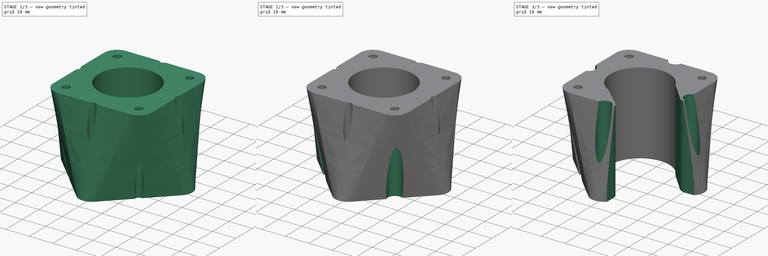
[diagram: build sequence overview — one tinted view per stage of 3, left to right]
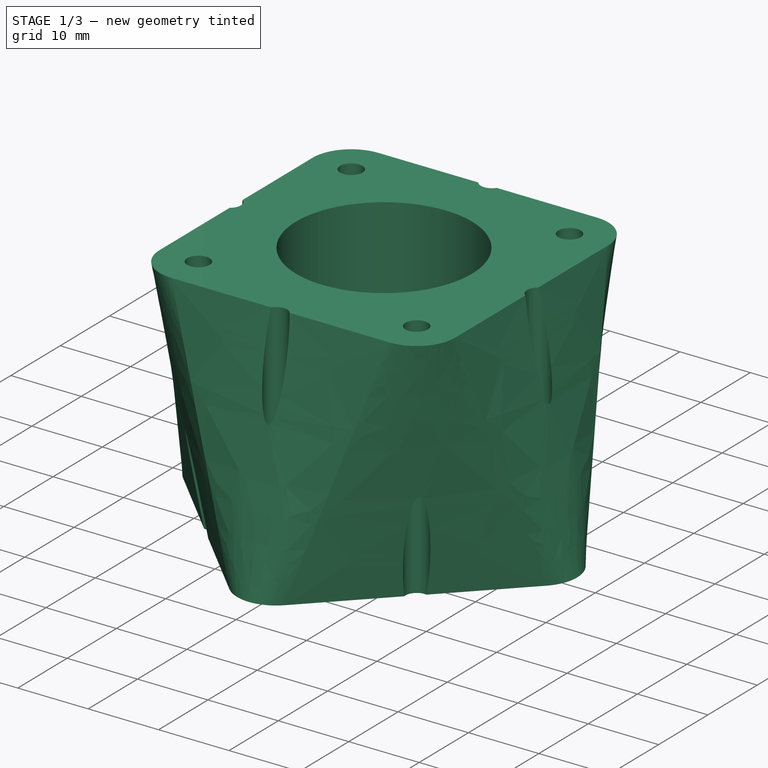
[diagram: stage 1 of 3 — iso view after this stage's code; geometry added in this stage tinted green]
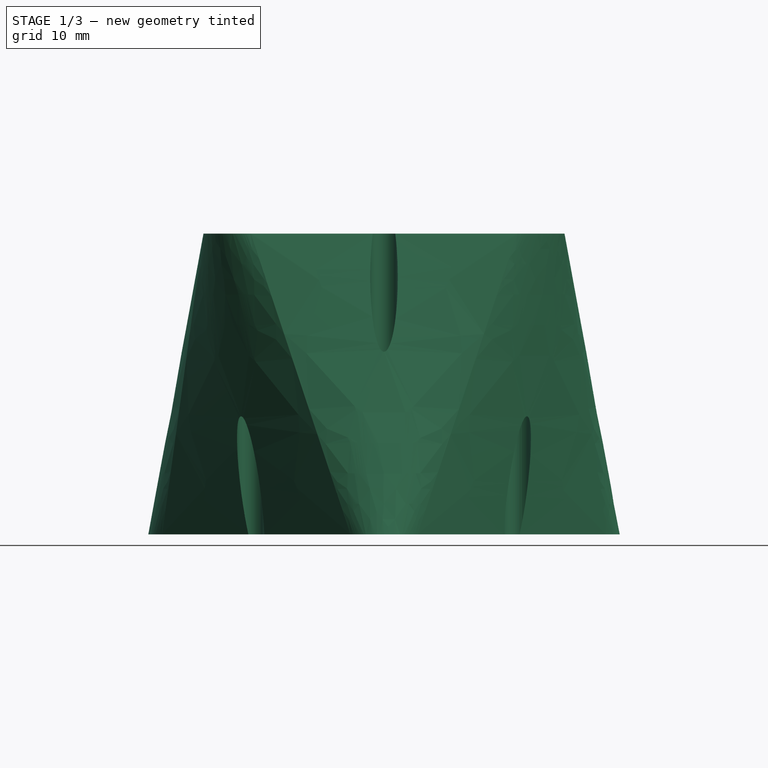
[diagram: stage 1 of 3 — front view after this stage's code; geometry added in this stage tinted green]
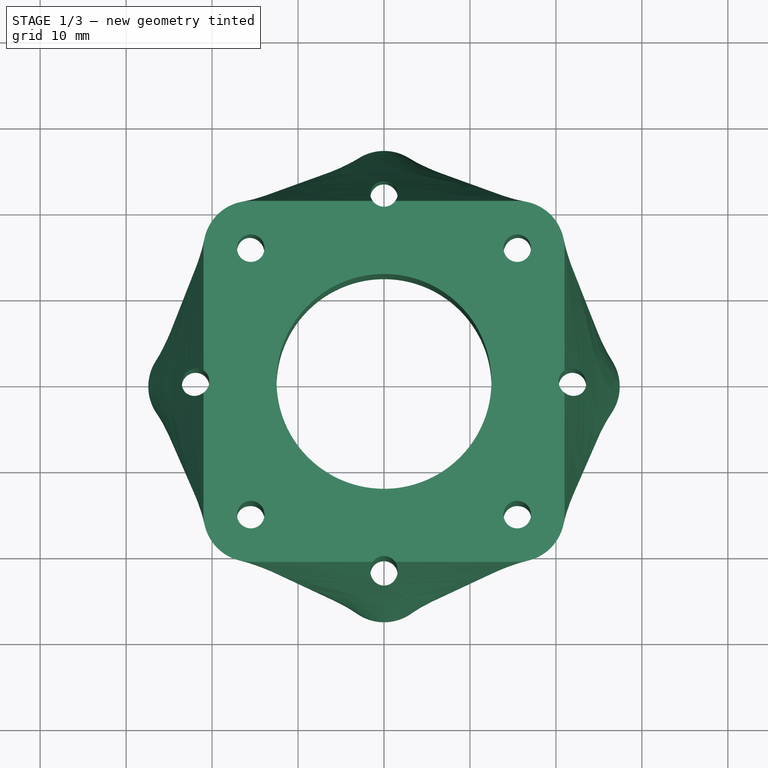
[diagram: stage 1 of 3 — top view after this stage's code; geometry added in this stage tinted green]
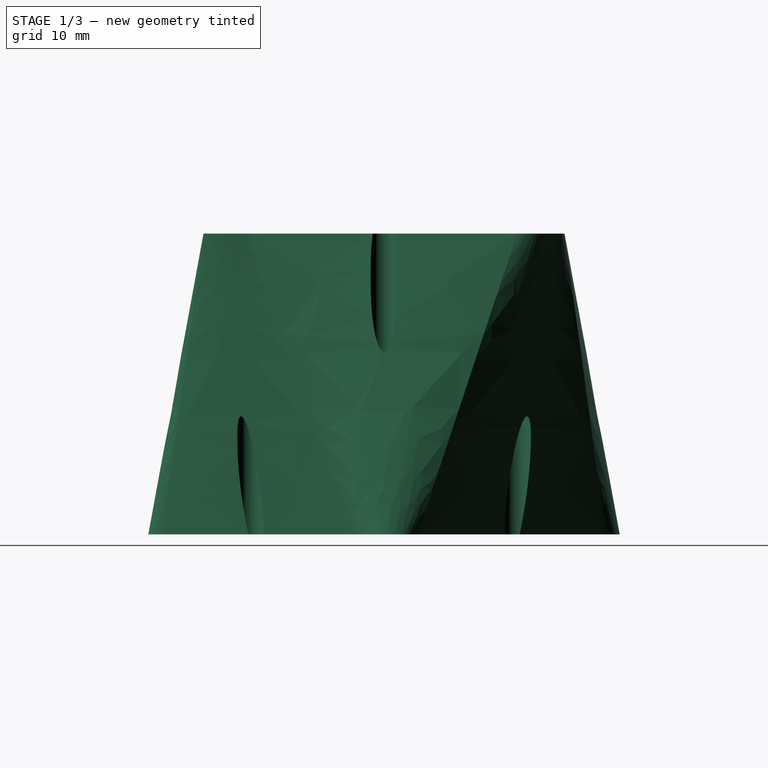
[diagram: stage 1 of 3 — right view after this stage's code; geometry added in this stage tinted green]
FCSTD DOCUMENT  (FreeCAD 0.19R24267 +99 (Git))
Label: motor_offset_coupling
License: All rights reserved
LicenseURL: http://en.wikipedia.org/wiki/All_rights_reserved
objects: Sketcher::SketchObject×6, PartDesign::Pocket×4, PartDesign::AdditiveLoft×1, PartDesign::Body×1
note: 17 computed .brp shape members not serialized (recipe doc carries the construction recipe); baked Part::Feature solids carry a one-line shape summary decoded from their .brp

FEATURE [Sketcher::SketchObject] Sketch
  FullyConstrained = true
  MapMode = 5
  Placement = pos=(0,0,35) rot=(0,0,1;0rad)
  sketch-geometry (16):
    g0: LineSegment StartX=-15.5 StartY=-15.5 StartZ=0 EndX=15.5 EndY=-15.5 EndZ=0
    g1: LineSegment StartX=15.5 StartY=-15.5 StartZ=0 EndX=15.5 EndY=15.5 EndZ=0
    g2: LineSegment StartX=15.5 StartY=15.5 StartZ=0 EndX=-15.5 EndY=15.5 EndZ=0
    g3: LineSegment StartX=-15.5 StartY=15.5 StartZ=0 EndX=-15.5 EndY=-15.5 EndZ=0
    g4: LineSegment StartX=-15.5 StartY=-21 StartZ=0 EndX=15.5 EndY=-21 EndZ=0
    g5: LineSegment StartX=21 StartY=-15.5 StartZ=0 EndX=21 EndY=15.5 EndZ=0
    g6: LineSegment StartX=15.5 StartY=21 StartZ=0 EndX=-15.5 EndY=21 EndZ=0
    g7: LineSegment StartX=-21 StartY=15.5 StartZ=0 EndX=-21 EndY=-15.5 EndZ=0
    g8: ArcOfCircle CenterX=-15.5 CenterY=15.5 CenterZ=0 NormalX=0 NormalY=0 NormalZ=1 AngleXU=0 Radius=5.5 StartAngle=1.5708 EndAngle=3.14159
    g9: GeomPoint X=-21 Y=21 Z=0
    g10: ArcOfCircle CenterX=15.5 CenterY=15.5 CenterZ=0 NormalX=0 NormalY=0 NormalZ=1 AngleXU=0 Radius=5.5 StartAngle=3.5e-15 EndAngle=1.5708
    g11: GeomPoint X=21 Y=21 Z=0
    g12: ArcOfCircle CenterX=15.5 CenterY=-15.5 CenterZ=0 NormalX=0 NormalY=0 NormalZ=1 AngleXU=0 Radius=5.5 StartAngle=4.71239 EndAngle=6.28319
    g13: GeomPoint X=21 Y=-21 Z=0
    g14: ArcOfCircle CenterX=-15.5 CenterY=-15.5 CenterZ=0 NormalX=0 NormalY=0 NormalZ=1 AngleXU=0 Radius=5.5 StartAngle=3.14159 EndAngle=4.71239
    g15: GeomPoint X=-21 Y=-21 Z=0
  constraints (36):
    c: Coincident(g0,g1)
    c: Coincident(g1,g2)
    c: Coincident(g2,g3)
    c: Coincident(g3,g0)
    c: Horizontal(g0)
    c: Horizontal(g2)
    c: Vertical(g1)
    c: Vertical(g3)
    c: DistanceX(g2,g2) = 31
    c: Equal(g3,g0)
    c: Symmetric(g0,g1,g-1)
    c: Horizontal(g4)
    c: Horizontal(g6)
    c: Vertical(g5)
    c: Vertical(g7)
    c: PointOnObject(g9,g6)
    c: PointOnObject(g9,g7)
    c: Tangent(g6,g8) = -1.5708
    c: Tangent(g7,g8) = -1.5708
    c: PointOnObject(g11,g6)
    c: PointOnObject(g11,g5)
    c: Tangent(g6,g10) = -1.5708
    c: Tangent(g5,g10) = -1.5708
    c: PointOnObject(g13,g5)
    c: PointOnObject(g13,g4)
    c: Tangent(g5,g12) = -1.5708
    c: Tangent(g4,g12) = -1.5708
    c: PointOnObject(g15,g4)
    c: PointOnObject(g15,g7)
    c: Tangent(g4,g14) = -1.5708
    c: Tangent(g7,g14) = -1.5708
    c: Horizontal(g7,g0)
    c: DistanceX(g9,g11) = 42
    c: Coincident(g8,g2)
    c: Coincident(g12,g0)
    c: Coincident(g10,g1)
FEATURE [Sketcher::SketchObject] Sketch001
  FullyConstrained = true
  MapMode = 5
  sketch-geometry (16):
    g0: LineSegment StartX=-21.9203 StartY=0 StartZ=0 EndX=0 EndY=-21.9203 EndZ=0
    g1: LineSegment StartX=-9e-16 StartY=-21.9203 StartZ=0 EndX=21.9203 EndY=0 EndZ=0
    g2: LineSegment StartX=21.9203 StartY=0 StartZ=0 EndX=0 EndY=21.9203 EndZ=0
    g3: LineSegment StartX=1.6e-15 StartY=21.9203 StartZ=0 EndX=-21.9203 EndY=0 EndZ=0
    g4: LineSegment StartX=3.88909 StartY=25.8094 StartZ=0 EndX=25.8094 EndY=3.88909 EndZ=0
    g5: LineSegment StartX=25.8094 StartY=-3.88909 StartZ=0 EndX=3.88909 EndY=-25.8094 EndZ=0
    g6: LineSegment StartX=-3.88909 StartY=-25.8094 StartZ=0 EndX=-25.8094 EndY=-3.88909 EndZ=0
    g7: LineSegment StartX=-25.8094 StartY=3.88909 StartZ=0 EndX=-3.88909 EndY=25.8094 EndZ=0
    g8: ArcOfCircle CenterX=1.6e-15 CenterY=21.9203 CenterZ=0 NormalX=0 NormalY=0 NormalZ=1 AngleXU=0 Radius=5.5 StartAngle=0.785398 EndAngle=2.35619
    g9: GeomPoint X=-3.5e-15 Y=29.6985 Z=0
    g10: ArcOfCircle CenterX=21.9203 CenterY=0 CenterZ=0 NormalX=0 NormalY=0 NormalZ=1 AngleXU=0 Radius=5.5 StartAngle=5.49779 EndAngle=7.06858
    g11: GeomPoint X=29.6985 Y=0 Z=0
    g12: ArcOfCircle CenterX=-9e-16 CenterY=-21.9203 CenterZ=0 NormalX=0 NormalY=0 NormalZ=1 AngleXU=0 Radius=5.5 StartAngle=3.92699 EndAngle=5.49779
    g13: GeomPoint X=2e-16 Y=-29.6985 Z=0
    g14: ArcOfCircle CenterX=-21.9203 CenterY=0 CenterZ=0 NormalX=0 NormalY=0 NormalZ=1 AngleXU=0 Radius=5.5 StartAngle=2.35619 EndAngle=3.92699
    g15: GeomPoint X=-29.6985 Y=0 Z=0
  constraints (34):
    c: Coincident(g0,g1)
    c: Coincident(g1,g2)
    c: Coincident(g2,g3)
    c: Coincident(g3,g0)
    c: Perpendicular(g3,g2)
    c: Perpendicular(g1,g2)
    c: Perpendicular(g0,g1)
    c: Distance(g2) = 31
    c: Equal(g2,g1)
    c: Symmetric(g0,g1,g-1)
    c: PointOnObject(g1,g-1)
    c: Perpendicular(g7,g4)
    c: Perpendicular(g5,g4)
    c: Perpendicular(g6,g5)
    c: Symmetric(g11,g15,g-1)
    c: PointOnObject(g15,g-1)
    c: PointOnObject(g9,g7)
    c: PointOnObject(g9,g4)
    c: Tangent(g7,g8) = 1.5708
    c: Tangent(g4,g8) = 1.5708
    c: PointOnObject(g11,g4)
    c: Tangent(g4,g10) = 1.5708
    c: Tangent(g5,g10) = 1.5708
    c: PointOnObject(g13,g5)
    c: PointOnObject(g13,g6)
    c: Tangent(g5,g12) = 1.5708
    c: Tangent(g6,g12) = 1.5708
    c: Tangent(g6,g14) = 1.5708
    c: Tangent(g7,g14) = 1.5708
    c: Coincident(g8,g2)
    c: Coincident(g12,g0)
    c: Coincident(g10,g1)
    c: Distance(g15,g13) = 42
    c: Coincident(g14,g0)
FEATURE [PartDesign::AdditiveLoft] AdditiveLoft
  Closed = false
  Placement = pos=(0,0,35) rot=(0,0,1;0rad)
  Profile = -> Sketch
  Refine = true
  Ruled = false
  Sections = -> [Sketch001]
FEATURE [Sketcher::SketchObject] Sketch002
  FullyConstrained = true
  MapMode = 5
  sketch-geometry (17):
    g0: LineSegment StartX=-15.5 StartY=-15.5 StartZ=0 EndX=15.5 EndY=-15.5 EndZ=0
    g1: LineSegment StartX=15.5 StartY=-15.5 StartZ=0 EndX=15.5 EndY=15.5 EndZ=0
    g2: LineSegment StartX=15.5 StartY=15.5 StartZ=0 EndX=-15.5 EndY=15.5 EndZ=0
    g3: LineSegment StartX=-15.5 StartY=15.5 StartZ=0 EndX=-15.5 EndY=-15.5 EndZ=0
    g4: Circle CenterX=-15.5 CenterY=-15.5 CenterZ=0 NormalX=0 NormalY=0 NormalZ=1 AngleXU=0 Radius=1.6
    g5: Circle CenterX=-15.5 CenterY=15.5 CenterZ=0 NormalX=0 NormalY=0 NormalZ=1 AngleXU=0 Radius=1.6
    g6: Circle CenterX=15.5 CenterY=15.5 CenterZ=0 NormalX=0 NormalY=0 NormalZ=1 AngleXU=0 Radius=1.6
    g7: Circle CenterX=15.5 CenterY=-15.5 CenterZ=0 NormalX=0 NormalY=0 NormalZ=1 AngleXU=0 Radius=1.6
    g8: Circle CenterX=0 CenterY=0 CenterZ=0 NormalX=0 NormalY=0 NormalZ=1 AngleXU=0 Radius=12.5
    g9: LineSegment StartX=-21.9203 StartY=0 StartZ=0 EndX=0 EndY=21.9203 EndZ=0
    g10: LineSegment StartX=0 StartY=21.9203 StartZ=0 EndX=21.9203 EndY=0 EndZ=0
    g11: LineSegment StartX=21.9203 StartY=3.5e-15 StartZ=0 EndX=0 EndY=-21.9203 EndZ=0
    g12: LineSegment StartX=0 StartY=-21.9203 StartZ=0 EndX=-21.9203 EndY=0 EndZ=0
    g13: Circle CenterX=0 CenterY=21.9203 CenterZ=0 NormalX=0 NormalY=0 NormalZ=1 AngleXU=0 Radius=1.6
    g14: Circle CenterX=21.9203 CenterY=0 CenterZ=0 NormalX=0 NormalY=0 NormalZ=1 AngleXU=0 Radius=1.6
    g15: Circle CenterX=0 CenterY=-21.9203 CenterZ=0 NormalX=0 NormalY=0 NormalZ=1 AngleXU=0 Radius=1.6
    g16: Circle CenterX=-21.9203 CenterY=0 CenterZ=0 NormalX=0 NormalY=0 NormalZ=1 AngleXU=0 Radius=1.6
  constraints (42):
    c: Coincident(g0,g1)
    c: Coincident(g1,g2)
    c: Coincident(g2,g3)
    c: Coincident(g3,g0)
    c: Horizontal(g0)
    c: Horizontal(g2)
    c: Vertical(g1)
    c: Vertical(g3)
    c: DistanceX(g2,g2) = 31
    c: Equal(g3,g0)
    c: Symmetric(g0,g1,g-1)
    c: Coincident(g4,g0)
    c: Coincident(g5,g2)
    c: Coincident(g6,g1)
    c: Coincident(g7,g0)
    c: Diameter(g4) = 3.2
    c: Equal(g4,g5)
    c: Equal(g5,g6)
    c: Equal(g6,g7)
    c: Coincident(g8,g-1)
    c: Diameter(g8) = 25
    c: PointOnObject(g9,g-1)
    c: PointOnObject(g9,g-2)
    c: Coincident(g10,g9)
    c: PointOnObject(g10,g-1)
    c: PointOnObject(g11,g-2)
    c: Coincident(g12,g11)
    c: Coincident(g12,g9)
    c: Perpendicular(g12,g9)
    c: Perpendicular(g10,g9)
    c: Perpendicular(g11,g10)
    c: Equal(g9,g10)
    c: Equal(g10,g11)
    c: Equal(g12,g2)
    c: Coincident(g13,g9)
    c: Coincident(g14,g10)
    c: Coincident(g15,g11)
    c: Coincident(g16,g9)
    c: Equal(g4,g13)
    c: Equal(g13,g14)
    c: Equal(g14,g15)
    c: Equal(g15,g16)
FEATURE [PartDesign::Pocket] Pocket
  BaseFeature = -> AdditiveLoft
  Length = 5
  Length2 = 100
  Placement = pos=(0,0,35) rot=(0,0,1;0rad)
  Profile = -> Sketch002
  Refine = true
  Reversed = true
  Type = 1
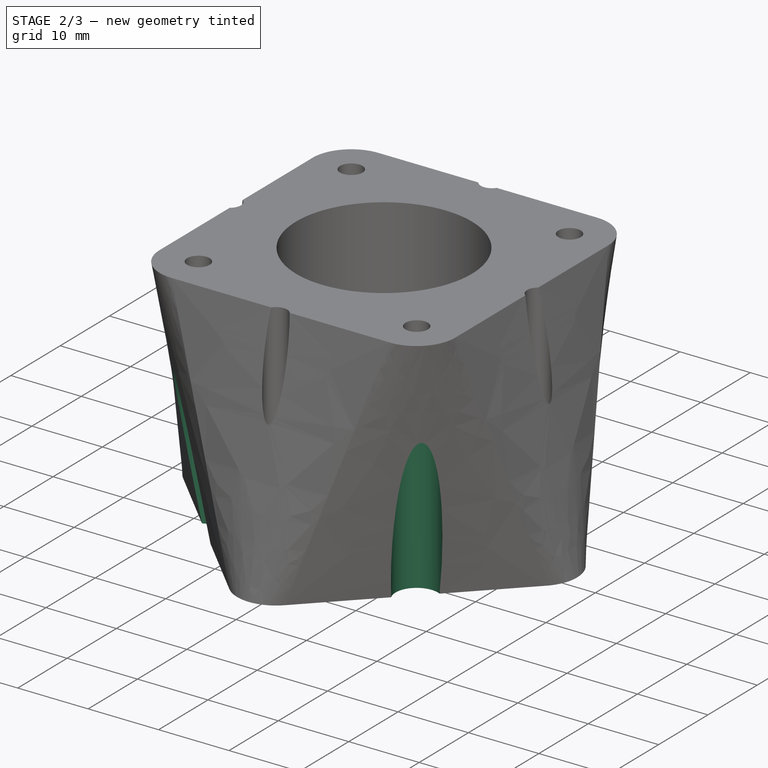
[diagram: stage 2 of 3 — iso view after this stage's code; geometry added in this stage tinted green]
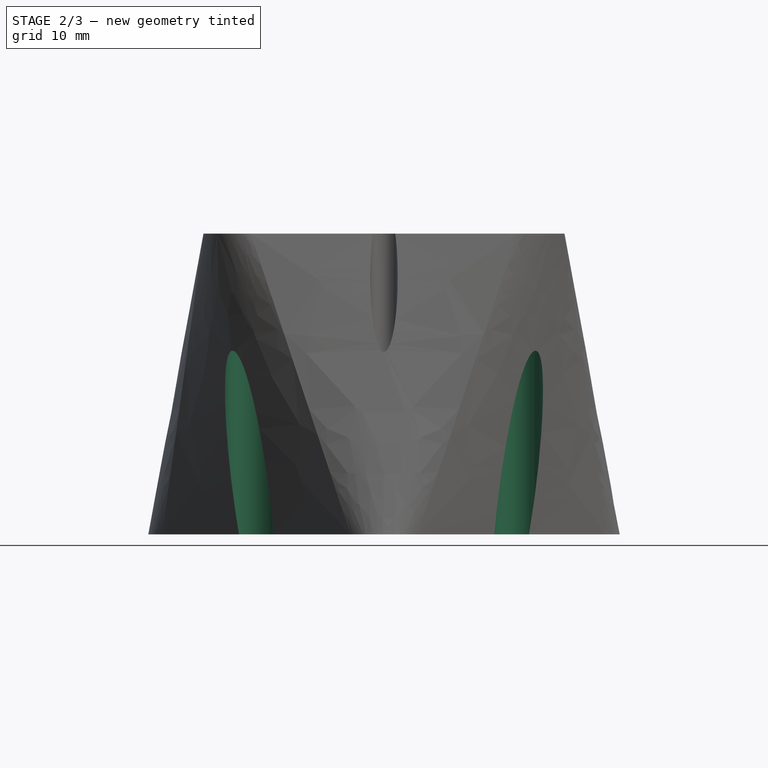
[diagram: stage 2 of 3 — front view after this stage's code; geometry added in this stage tinted green]
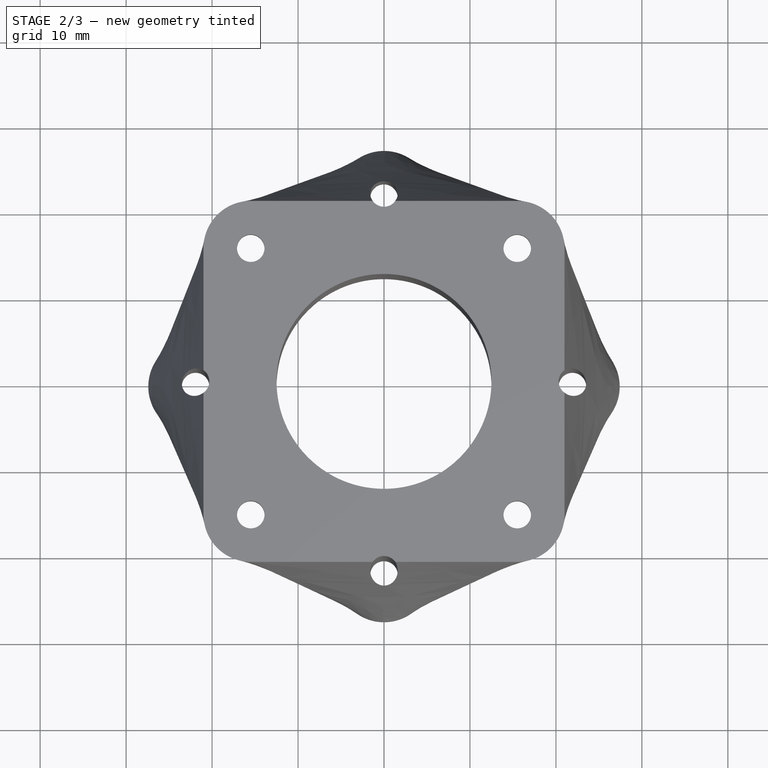
[diagram: stage 2 of 3 — top view after this stage's code; geometry added in this stage tinted green]
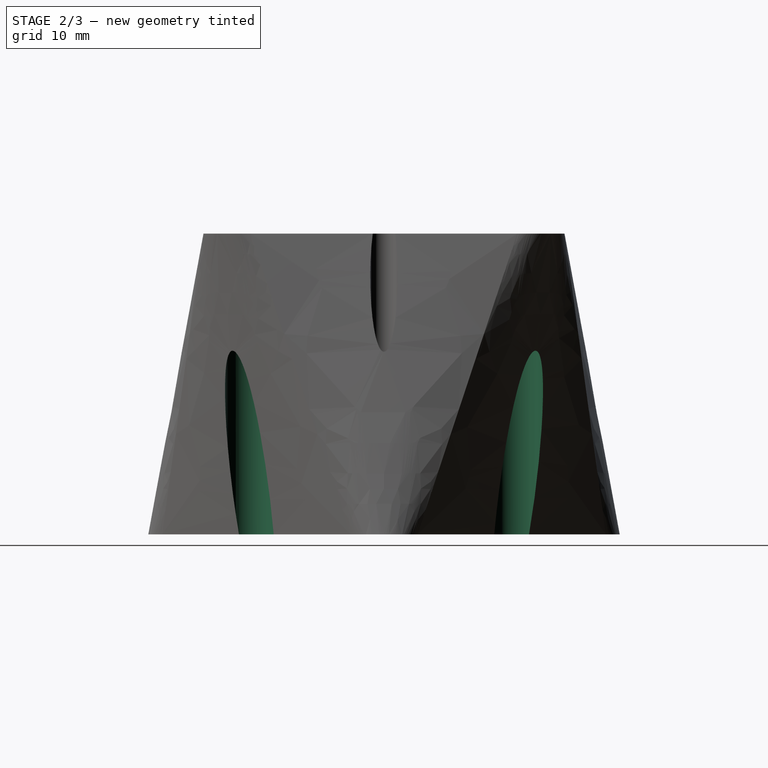
[diagram: stage 2 of 3 — right view after this stage's code; geometry added in this stage tinted green]
FEATURE [Sketcher::SketchObject] Sketch003
  FullyConstrained = true
  MapMode = 5
  Placement = pos=(0,0,31) rot=(0,0,1;0rad)
  sketch-geometry (8):
    g0: LineSegment StartX=-15.5 StartY=-15.5 StartZ=0 EndX=15.5 EndY=-15.5 EndZ=0
    g1: LineSegment StartX=15.5 StartY=-15.5 StartZ=0 EndX=15.5 EndY=15.5 EndZ=0
    g2: LineSegment StartX=15.5 StartY=15.5 StartZ=0 EndX=-15.5 EndY=15.5 EndZ=0
    g3: LineSegment StartX=-15.5 StartY=15.5 StartZ=0 EndX=-15.5 EndY=-15.5 EndZ=0
    g4: Circle CenterX=-15.5 CenterY=15.5 CenterZ=0 NormalX=0 NormalY=0 NormalZ=1 AngleXU=0 Radius=3
    g5: Circle CenterX=15.5 CenterY=15.5 CenterZ=0 NormalX=0 NormalY=0 NormalZ=1 AngleXU=0 Radius=3
    g6: Circle CenterX=15.5 CenterY=-15.5 CenterZ=0 NormalX=0 NormalY=0 NormalZ=1 AngleXU=0 Radius=3
    g7: Circle CenterX=-15.5 CenterY=-15.5 CenterZ=0 NormalX=0 NormalY=0 NormalZ=1 AngleXU=0 Radius=3
  constraints (19):
    c: Coincident(g0,g1)
    c: Coincident(g1,g2)
    c: Coincident(g2,g3)
    c: Coincident(g3,g0)
    c: Horizontal(g0)
    c: Horizontal(g2)
    c: Vertical(g1)
    c: Vertical(g3)
    c: DistanceX(g2,g2) = 31
    c: Equal(g3,g0)
    c: Symmetric(g0,g1,g-1)
    c: Coincident(g4,g2)
    c: Coincident(g5,g1)
    c: Coincident(g6,g0)
    c: Coincident(g7,g0)
    c: Diameter(g7) = 6
    c: Equal(g7,g4)
    c: Equal(g4,g5)
    c: Equal(g5,g6)
FEATURE [PartDesign::Pocket] Pocket001
  BaseFeature = -> Pocket
  Length = 5
  Length2 = 100
  Placement = pos=(0,0,35) rot=(0,0,1;0rad)
  Profile = -> Sketch003
  Refine = true
  Type = 1
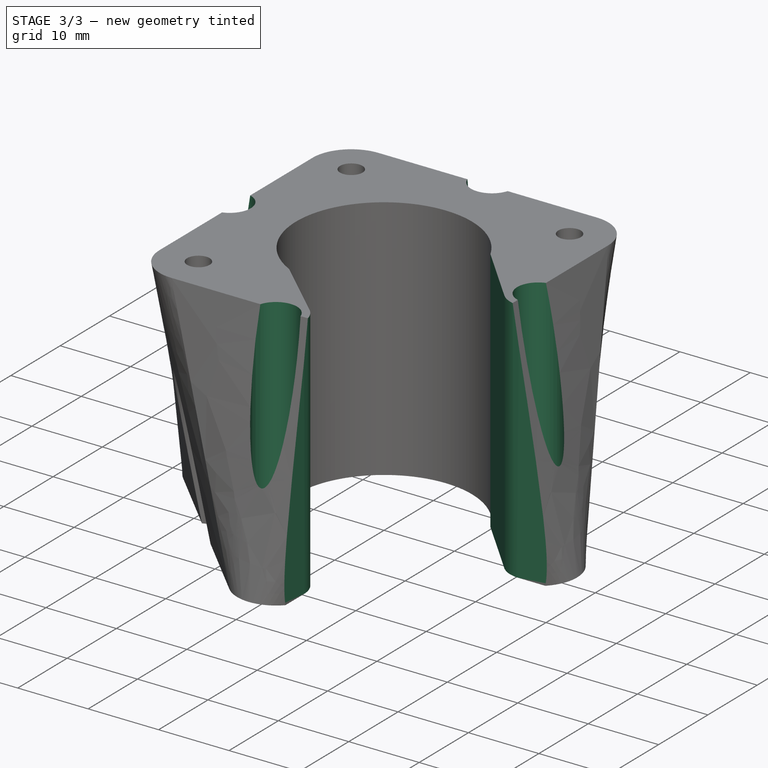
[diagram: stage 3 of 3 — iso view after this stage's code; geometry added in this stage tinted green]
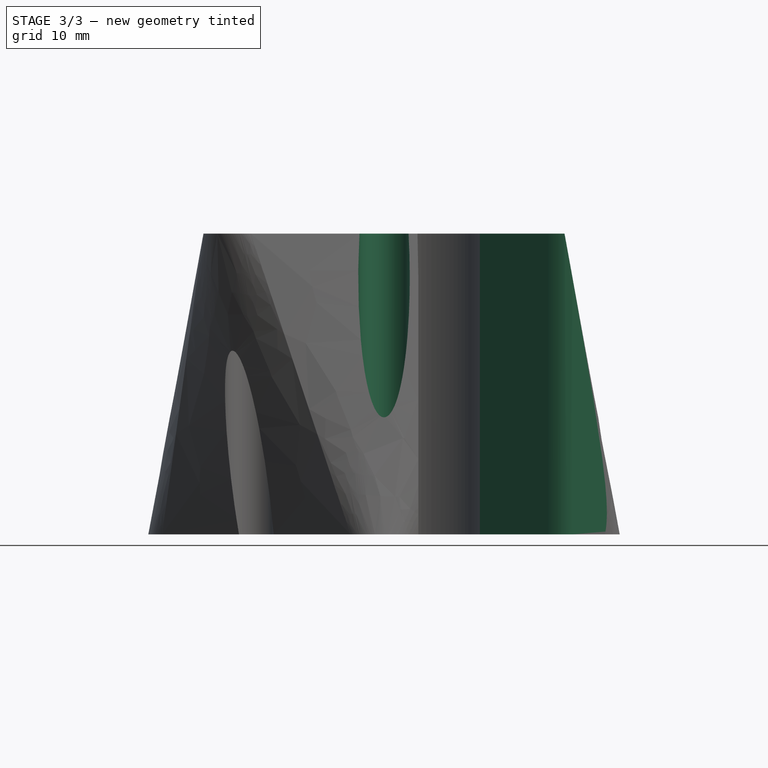
[diagram: stage 3 of 3 — front view after this stage's code; geometry added in this stage tinted green]
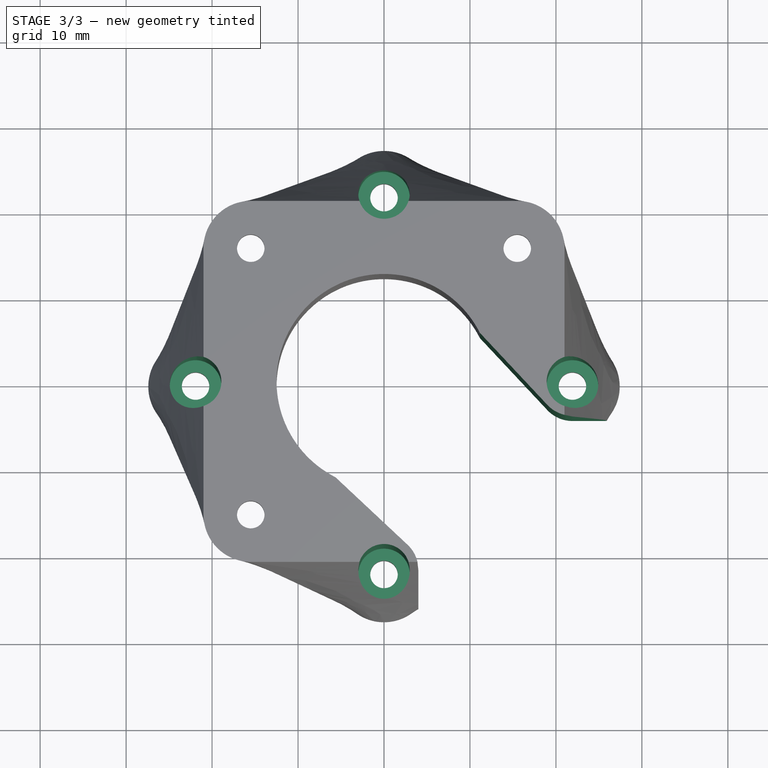
[diagram: stage 3 of 3 — top view after this stage's code; geometry added in this stage tinted green]
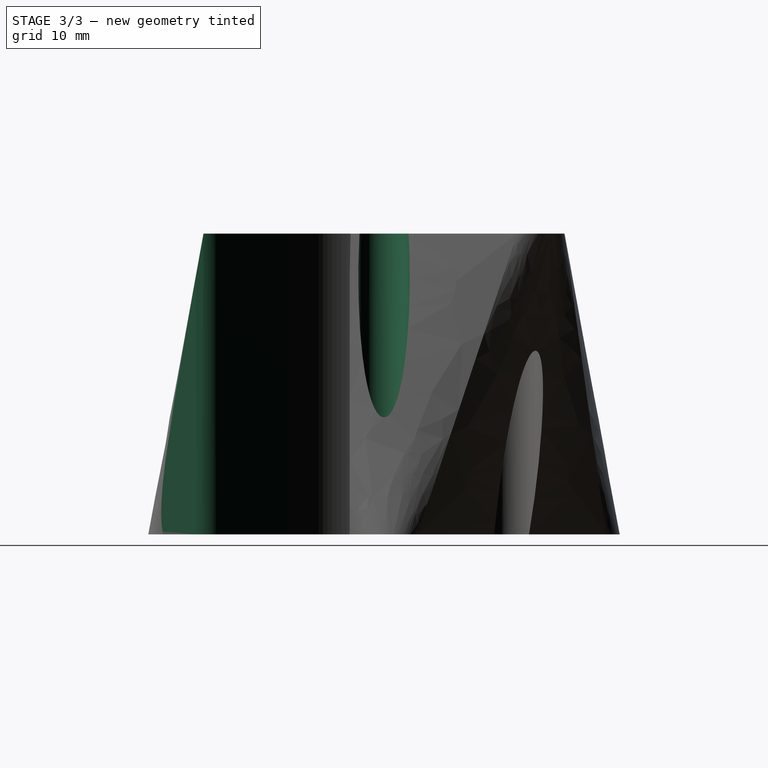
[diagram: stage 3 of 3 — right view after this stage's code; geometry added in this stage tinted green]
FEATURE [Sketcher::SketchObject] Sketch004
  FullyConstrained = true
  MapMode = 5
  Placement = pos=(0,0,4) rot=(0,0,1;0rad)
  sketch-geometry (8):
    g0: LineSegment StartX=-21.9203 StartY=0 StartZ=0 EndX=0 EndY=21.9203 EndZ=0
    g1: LineSegment StartX=0 StartY=21.9203 StartZ=0 EndX=21.9203 EndY=0 EndZ=0
    g2: LineSegment StartX=21.9203 StartY=0 StartZ=0 EndX=0 EndY=-21.9203 EndZ=0
    g3: LineSegment StartX=0 StartY=-21.9203 StartZ=0 EndX=-21.9203 EndY=0 EndZ=0
    g4: Circle CenterX=-21.9203 CenterY=0 CenterZ=0 NormalX=0 NormalY=0 NormalZ=1 AngleXU=0 Radius=3
    g5: Circle CenterX=0 CenterY=21.9203 CenterZ=0 NormalX=0 NormalY=0 NormalZ=1 AngleXU=0 Radius=3
    g6: Circle CenterX=21.9203 CenterY=0 CenterZ=0 NormalX=0 NormalY=0 NormalZ=1 AngleXU=0 Radius=3
    g7: Circle CenterX=0 CenterY=-21.9203 CenterZ=0 NormalX=0 NormalY=0 NormalZ=1 AngleXU=0 Radius=3
  constraints (20):
    c: PointOnObject(g0,g-1)
    c: PointOnObject(g0,g-2)
    c: Coincident(g1,g0)
    c: PointOnObject(g1,g-1)
    c: Coincident(g2,g1)
    c: PointOnObject(g2,g-2)
    c: Coincident(g3,g2)
    c: Coincident(g3,g0)
    c: Distance(g0) = 31
    c: Equal(g0,g1)
    c: Equal(g1,g2)
    c: Perpendicular(g1,g0)
    c: Coincident(g4,g0)
    c: Coincident(g5,g0)
    c: Coincident(g6,g1)
    c: Coincident(g7,g2)
    c: Diameter(g4) = 6
    c: Equal(g4,g5)
    c: Equal(g5,g6)
    c: Equal(g6,g7)
FEATURE [PartDesign::Pocket] Pocket002
  BaseFeature = -> Pocket001
  Length = 5
  Length2 = 100
  Placement = pos=(0,0,35) rot=(0,0,1;0rad)
  Profile = -> Sketch004
  Refine = true
  Reversed = true
  Type = 1
FEATURE [Sketcher::SketchObject] Sketch005
  FullyConstrained = true
  MapMode = 5
  Support = -> [XY_Plane]
  sketch-geometry (20):
    g0: LineSegment StartX=-15.5 StartY=-15.5 StartZ=0 EndX=15.5 EndY=-15.5 EndZ=0
    g1: LineSegment StartX=15.5 StartY=-15.5 StartZ=0 EndX=15.5 EndY=15.5 EndZ=0
    g2: LineSegment StartX=15.5 StartY=15.5 StartZ=0 EndX=-15.5 EndY=15.5 EndZ=0
    g3: LineSegment StartX=-15.5 StartY=15.5 StartZ=0 EndX=-15.5 EndY=-15.5 EndZ=0
    g4: Circle CenterX=0 CenterY=0 CenterZ=0 NormalX=0 NormalY=0 NormalZ=1 AngleXU=0 Radius=12.5
    g5: LineSegment StartX=-21.9203 StartY=0 StartZ=0 EndX=0 EndY=21.9203 EndZ=0
    g6: LineSegment StartX=0 StartY=21.9203 StartZ=0 EndX=21.9203 EndY=0 EndZ=0
    g7: LineSegment StartX=21.9203 StartY=0 StartZ=0 EndX=0 EndY=-21.9203 EndZ=0
    g8: LineSegment StartX=0 StartY=-21.9203 StartZ=0 EndX=-21.9203 EndY=0 EndZ=0
    g9: Circle CenterX=0 CenterY=-21.9203 CenterZ=0 NormalX=0 NormalY=0 NormalZ=1 AngleXU=0 Radius=3
    g10: Circle CenterX=21.9203 CenterY=0 CenterZ=0 NormalX=0 NormalY=0 NormalZ=1 AngleXU=0 Radius=3
    g11: ArcOfCircle CenterX=0 CenterY=-21.9203 CenterZ=0 NormalX=0 NormalY=0 NormalZ=1 AngleXU=0 Radius=4 StartAngle=5e-16 EndAngle=0.8182
    g12: ArcOfCircle CenterX=21.9203 CenterY=0 CenterZ=0 NormalX=0 NormalY=0 NormalZ=1 AngleXU=0 Radius=4 StartAngle=3.89419 EndAngle=4.71239
    g13: LineSegment StartX=4 StartY=-21.9203 StartZ=0 EndX=4 EndY=-29.6421 EndZ=0
    g14: LineSegment StartX=4 StartY=-29.6421 StartZ=0 EndX=29.6421 EndY=-29.6421 EndZ=0
    g15: LineSegment StartX=29.6421 StartY=-29.6421 StartZ=0 EndX=29.6421 EndY=-4 EndZ=0
    g16: LineSegment StartX=29.6421 StartY=-4 StartZ=0 EndX=21.9203 EndY=-4 EndZ=0
    g17: ArcOfCircle CenterX=0 CenterY=0 CenterZ=0 NormalX=0 NormalY=0 NormalZ=1 AngleXU=0 Radius=12 StartAngle=0.752596 EndAngle=3.95979
    g18: LineSegment StartX=2.73414 StartY=-19.0006 StartZ=0 EndX=-8.20243 EndY=-8.759 EndZ=0
    g19: LineSegment StartX=19.0006 StartY=-2.73414 StartZ=0 EndX=8.759 EndY=8.20243 EndZ=0
  constraints (50):
    c: Coincident(g0,g1)
    c: Coincident(g1,g2)
    c: Coincident(g2,g3)
    c: Coincident(g3,g0)
    c: Horizontal(g0)
    c: Horizontal(g2)
    c: Vertical(g1)
    c: Vertical(g3)
    c: Symmetric(g0,g1,g-1)
    c: DistanceX(g2,g2) = 31
    c: Equal(g2,g3)
    c: Coincident(g4,g-1)
    c: Diameter(g4) = 25
    c: PointOnObject(g5,g-1)
    c: PointOnObject(g5,g-2)
    c: Coincident(g6,g5)
    c: PointOnObject(g6,g-1)
    c: Coincident(g7,g6)
    c: PointOnObject(g7,g-2)
    c: Coincident(g8,g7)
    c: Coincident(g8,g5)
    c: Equal(g6,g7)
    c: Perpendicular(g6,g5)
    c: Equal(g5,g6)
    c: Equal(g8,g2)
    c: Coincident(g9,g7)
    c: Coincident(g10,g6)
    c: Diameter(g9) = 6
    c: Equal(g9,g10)
    c: Coincident(g11,g7)
    c: Coincident(g12,g6)
    c: Diameter(g11) = 8
    c: Equal(g11,g12)
    c: Vertical(g13)
    c: Coincident(g14,g13)
    c: Horizontal(g14)
    c: Coincident(g15,g14)
    c: Vertical(g15)
    c: Coincident(g16,g15)
    c: Horizontal(g16)
    c: Equal(g15,g14)
    c: Distance(g0,g14) = 20
    c: Tangent(g12,g16) = 1.5708
    c: Tangent(g11,g13) = 1.5708
    c: Coincident(g17,g-1)
    c: Diameter(g17) = 24
    c: Tangent(g18,g11) = -1.5708
    c: Tangent(g19,g12) = 1.5708
    c: Tangent(g17,g19) = -1.5708
    c: Tangent(g17,g18) = 1.5708
FEATURE [PartDesign::Pocket] Pocket003
  BaseFeature = -> Pocket002
  Length = 5
  Length2 = 100
  Placement = pos=(0,0,35) rot=(0,0,1;0rad)
  Profile = -> Sketch005
  Refine = true
  Reversed = true
  Type = 1
FEATURE [PartDesign::Body] Body
  Group = -> [Sketch,Sketch001,AdditiveLoft,Sketch002,Pocket,Sketch003,Pocket001,Sketch004,Pocket002,Sketch005,Pocket003]
  Origin = -> Origin
  Tip = -> Pocket003
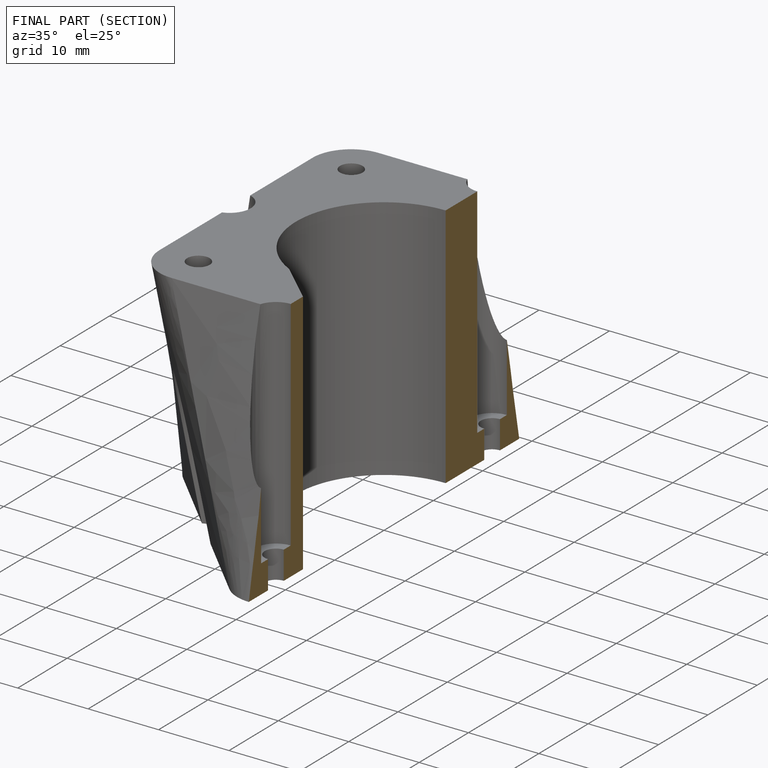
[diagram: finished part — half-section view (interior)]
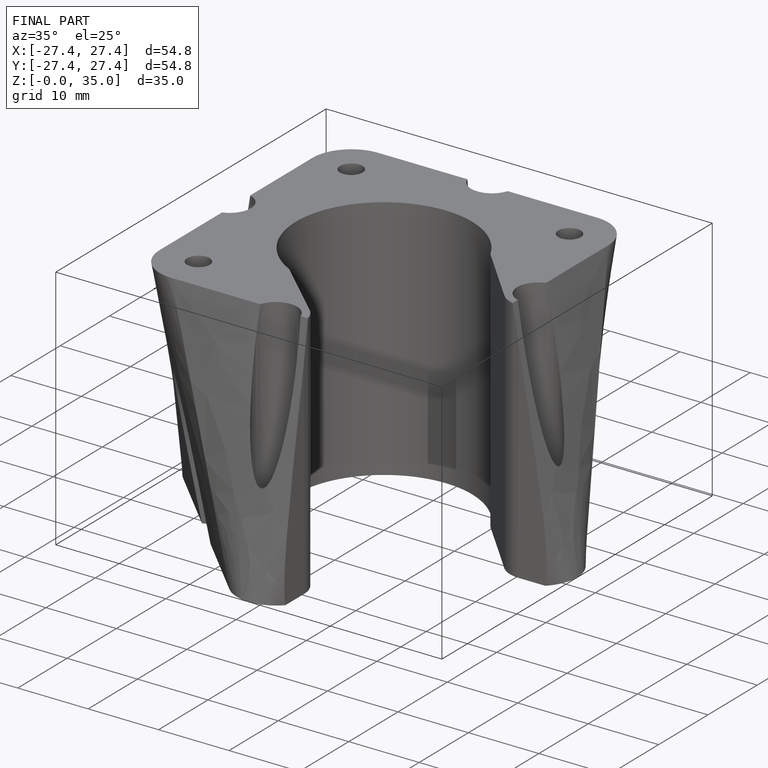
[diagram: finished part — iso view with bounding-box wireframe]
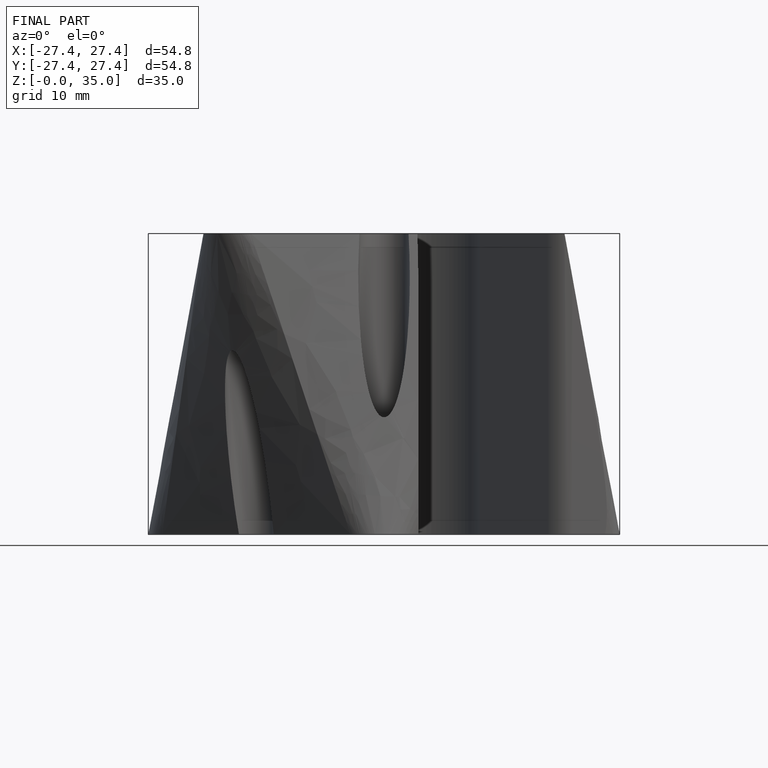
[diagram: finished part — front view with bounding-box wireframe]
